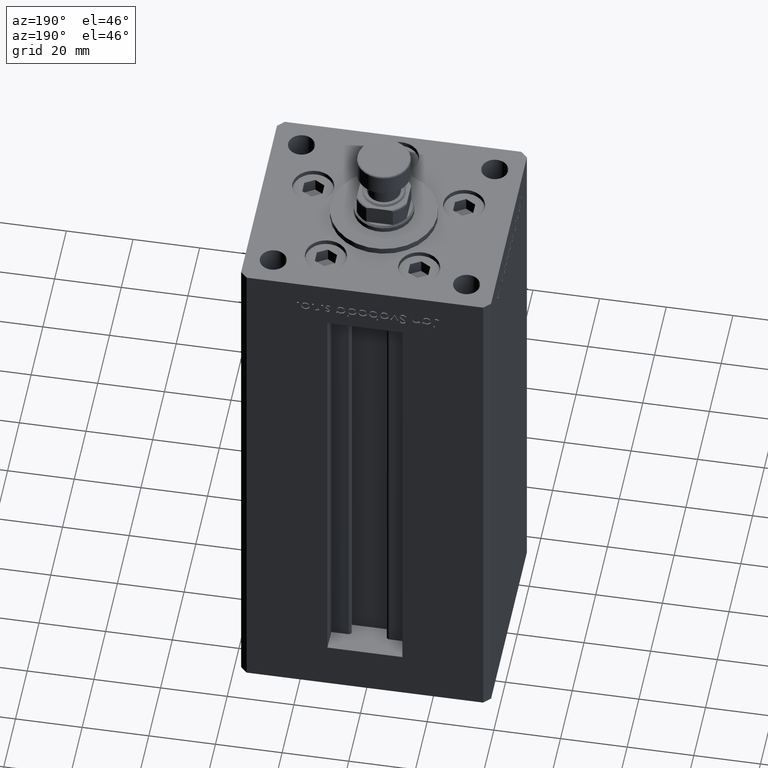
[diagram: clean part render]
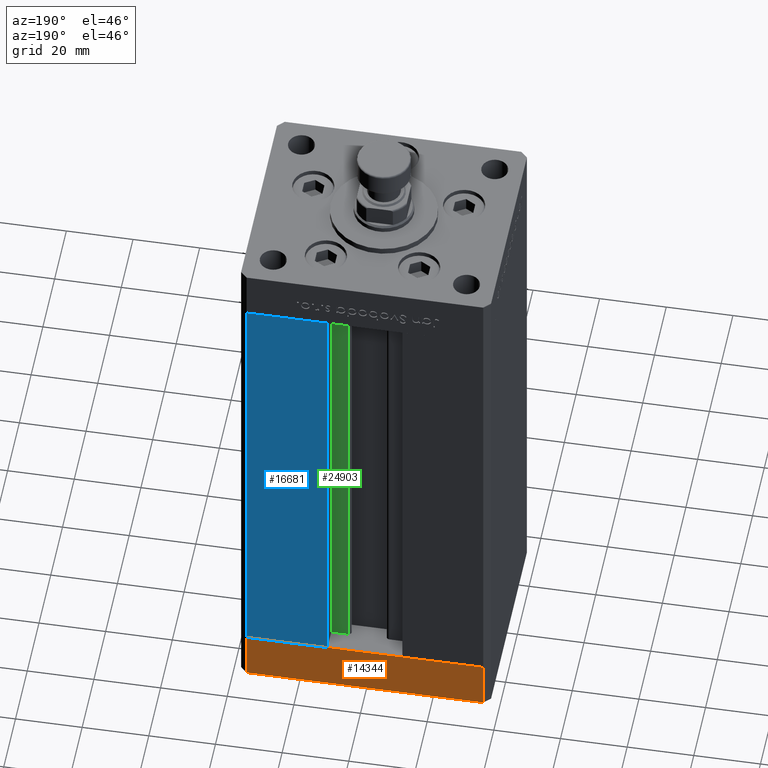
[diagram: same view with three faces highlighted in distinct colors, each labeled with its STEP entity id]
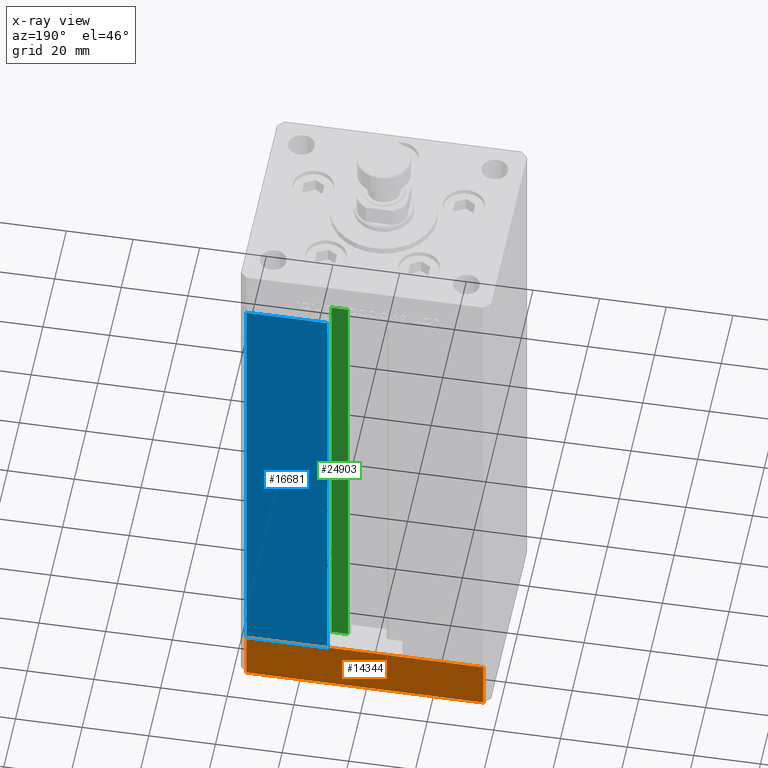
[diagram: x-ray of the same camera — body ghosted, the three highlighted faces saturated]
A machine part, auxiliary view with three faces highlighted in distinct colors.
The next image is the same camera in x-ray (body ghosted, the three faces saturated) — at least one of them is partly hidden behind the body in this view.
Their STEP definitions:

[orange] entity #14344 — the highlighted planar face has unit normal (0, 1, 0).
#2375 = PLANE ( 'NONE',  #32596 ) ;
#2636 = DIRECTION ( 'NONE',  ( -1.000000000000000000, -1.954618001100629052E-16, 0.000000000000000000 ) ) ;
#4412 = VERTEX_POINT ( 'NONE', #11538 ) ;
#4631 = CARTESIAN_POINT ( 'NONE',  ( 35.49999999999992184, 32.50000000000000711, 0.000000000000000000 ) ) ;
#5890 = LINE ( 'NONE', #29605, #21758 ) ;
#6945 = VECTOR ( 'NONE', #37063, 1000.000000000000000 ) ;
#8287 = EDGE_CURVE ( 'NONE', #45125, #28592, #13067, .T. ) ;
#10088 = DIRECTION ( 'NONE',  ( -1.954618001100629052E-16, 1.000000000000000000, 0.000000000000000000 ) ) ;
#10191 = CARTESIAN_POINT ( 'NONE',  ( 35.49999999999992184, 32.50000000000000711, -15.00000000000000000 ) ) ;
#11538 = CARTESIAN_POINT ( 'NONE',  ( -35.50000000000002842, 32.49999999999999289, 0.000000000000000000 ) ) ;
#11685 = CARTESIAN_POINT ( 'NONE',  ( 35.49999999999992184, 32.50000000000000711, -15.00000000000000000 ) ) ;
#13067 = LINE ( 'NONE', #20531, #6945 ) ;
#13871 = LINE ( 'NONE', #49617, #18341 ) ;
#14091 = CARTESIAN_POINT ( 'NONE',  ( 35.49999999999992184, 32.50000000000000711, -15.00000000000000000 ) ) ;
#14344 = ADVANCED_FACE ( 'NONE', ( #17818 ), #2375, .T. ) ;
#15640 = ORIENTED_EDGE ( 'NONE', *, *, #8287, .F. ) ;
#17818 = FACE_OUTER_BOUND ( 'NONE', #34843, .T. ) ;
#18341 = VECTOR ( 'NONE', #45615, 1000.000000000000000 ) ;
#18719 = CARTESIAN_POINT ( 'NONE',  ( -35.50000000000002842, 32.49999999999999289, -15.00000000000000000 ) ) ;
#19369 = VERTEX_POINT ( 'NONE', #18719 ) ;
#20531 = CARTESIAN_POINT ( 'NONE',  ( 35.49999999999992184, 32.50000000000000711, -15.00000000000000000 ) ) ;
#21758 = VECTOR ( 'NONE', #45883, 1000.000000000000000 ) ;
#25111 = VECTOR ( 'NONE', #26724, 1000.000000000000000 ) ;
#25341 = EDGE_CURVE ( 'NONE', #45125, #19369, #38984, .T. ) ;
#26212 = EDGE_CURVE ( 'NONE', #19369, #4412, #13871, .T. ) ;
#26724 = DIRECTION ( 'NONE',  ( -1.000000000000000000, -1.954618001100629052E-16, 0.000000000000000000 ) ) ;
#27079 = EDGE_CURVE ( 'NONE', #28592, #4412, #5890, .T. ) ;
#27231 = ORIENTED_EDGE ( 'NONE', *, *, #25341, .T. ) ;
#28592 = VERTEX_POINT ( 'NONE', #4631 ) ;
#29605 = CARTESIAN_POINT ( 'NONE',  ( 35.49999999999992184, 32.50000000000000711, 0.000000000000000000 ) ) ;
#32579 = ORIENTED_EDGE ( 'NONE', *, *, #27079, .F. ) ;
#32596 = AXIS2_PLACEMENT_3D ( 'NONE', #14091, #10088, #2636 ) ;
#32771 = ORIENTED_EDGE ( 'NONE', *, *, #26212, .T. ) ;
#34843 = EDGE_LOOP ( 'NONE', ( #32579, #15640, #27231, #32771 ) ) ;
#37063 = DIRECTION ( 'NONE',  ( 0.000000000000000000, 0.000000000000000000, 1.000000000000000000 ) ) ;
#38984 = LINE ( 'NONE', #10191, #25111 ) ;
#45125 = VERTEX_POINT ( 'NONE', #11685 ) ;
#45615 = DIRECTION ( 'NONE',  ( 0.000000000000000000, 0.000000000000000000, 1.000000000000000000 ) ) ;
#45883 = DIRECTION ( 'NONE',  ( -1.000000000000000000, -1.954618001100629052E-16, 0.000000000000000000 ) ) ;
#49617 = CARTESIAN_POINT ( 'NONE',  ( -35.50000000000002842, 32.49999999999999289, -15.00000000000000000 ) ) ;

[blue] entity #16681 — the highlighted planar face has unit normal (0, -1, 0).
#142 = LINE ( 'NONE', #40394, #925 ) ;
#197 = FACE_OUTER_BOUND ( 'NONE', #37152, .T. ) ;
#925 = VECTOR ( 'NONE', #32639, 1000.000000000000000 ) ;
#944 = VECTOR ( 'NONE', #9635, 1000.000000000000000 ) ;
#2716 = DIRECTION ( 'NONE',  ( -1.000000000000000000, 0.000000000000000000, 0.000000000000000000 ) ) ;
#5915 = VERTEX_POINT ( 'NONE', #37742 ) ;
#8851 = CARTESIAN_POINT ( 'NONE',  ( -11.25000000000000178, 32.49999999999999289, 138.0000000000000000 ) ) ;
#9635 = DIRECTION ( 'NONE',  ( 1.000000000000000000, 0.000000000000000000, 0.000000000000000000 ) ) ;
#11719 = VERTEX_POINT ( 'NONE', #13935 ) ;
#13211 = VERTEX_POINT ( 'NONE', #42536 ) ;
#13935 = CARTESIAN_POINT ( 'NONE',  ( 11.24999999999999467, 32.49999999999999289, 138.0000000000000000 ) ) ;
#16451 = CARTESIAN_POINT ( 'NONE',  ( 11.25000000000000178, 32.49999999999999289, 0.000000000000000000 ) ) ;
#16681 = ADVANCED_FACE ( 'NONE', ( #197 ), #40953, .F. ) ;
#16953 = CARTESIAN_POINT ( 'NONE',  ( -11.25000000000000178, 32.49999999999999289, 138.0000000000000000 ) ) ;
#17493 = DIRECTION ( 'NONE',  ( 0.000000000000000000, -0.000000000000000000, -1.000000000000000000 ) ) ;
#17844 = ORIENTED_EDGE ( 'NONE', *, *, #41271, .T. ) ;
#19212 = ORIENTED_EDGE ( 'NONE', *, *, #50970, .T. ) ;
#23494 = LINE ( 'NONE', #35738, #48033 ) ;
#25230 = DIRECTION ( 'NONE',  ( 0.000000000000000000, -1.000000000000000000, 0.000000000000000000 ) ) ;
#27203 = VECTOR ( 'NONE', #47309, 1000.000000000000000 ) ;
#30098 = ORIENTED_EDGE ( 'NONE', *, *, #43498, .T. ) ;
#31020 = LINE ( 'NONE', #51818, #27203 ) ;
#32639 = DIRECTION ( 'NONE',  ( -0.000000000000000000, -0.000000000000000000, 1.000000000000000000 ) ) ;
#35738 = CARTESIAN_POINT ( 'NONE',  ( -11.25000000000000178, 32.49999999999999289, 0.000000000000000000 ) ) ;
#37152 = EDGE_LOOP ( 'NONE', ( #19212, #17844, #30098, #40995 ) ) ;
#37742 = CARTESIAN_POINT ( 'NONE',  ( 35.50000000000000000, 32.49999999999999289, 0.000000000000000000 ) ) ;
#38146 = EDGE_CURVE ( 'NONE', #13211, #5915, #31020, .T. ) ;
#38153 = LINE ( 'NONE', #8851, #944 ) ;
#40394 = CARTESIAN_POINT ( 'NONE',  ( 11.25000000000000178, 32.49999999999999289, 0.000000000000000000 ) ) ;
#40953 = PLANE ( 'NONE',  #51438 ) ;
#40995 = ORIENTED_EDGE ( 'NONE', *, *, #38146, .T. ) ;
#41271 = EDGE_CURVE ( 'NONE', #50324, #11719, #142, .T. ) ;
#42536 = CARTESIAN_POINT ( 'NONE',  ( 35.50000000000000000, 32.49999999999999289, 138.0000000000000000 ) ) ;
#43498 = EDGE_CURVE ( 'NONE', #11719, #13211, #38153, .T. ) ;
#47309 = DIRECTION ( 'NONE',  ( -0.000000000000000000, -0.000000000000000000, -1.000000000000000000 ) ) ;
#48033 = VECTOR ( 'NONE', #2716, 1000.000000000000000 ) ;
#50324 = VERTEX_POINT ( 'NONE', #16451 ) ;
#50970 = EDGE_CURVE ( 'NONE', #5915, #50324, #23494, .T. ) ;
#51438 = AXIS2_PLACEMENT_3D ( 'NONE', #16953, #25230, #17493 ) ;
#51818 = CARTESIAN_POINT ( 'NONE',  ( 35.50000000000000000, 32.49999999999999289, 138.0000000000000000 ) ) ;

[green] entity #24903 — the highlighted planar face has unit normal (0, -1, 0).
#1736 = FACE_OUTER_BOUND ( 'NONE', #50842, .T. ) ;
#2596 = VERTEX_POINT ( 'NONE', #45633 ) ;
#5739 = VERTEX_POINT ( 'NONE', #13840 ) ;
#6384 = ORIENTED_EDGE ( 'NONE', *, *, #37698, .F. ) ;
#6473 = VERTEX_POINT ( 'NONE', #23224 ) ;
#9783 = VECTOR ( 'NONE', #26524, 1000.000000000000000 ) ;
#11604 = VECTOR ( 'NONE', #13417, 1000.000000000000000 ) ;
#12104 = DIRECTION ( 'NONE',  ( 1.000000000000000000, 0.000000000000000000, 0.000000000000000000 ) ) ;
#12625 = LINE ( 'NONE', #17675, #11604 ) ;
#13202 = DIRECTION ( 'NONE',  ( 0.000000000000000000, -0.000000000000000000, -1.000000000000000000 ) ) ;
#13417 = DIRECTION ( 'NONE',  ( -1.000000000000000000, 0.000000000000000000, 0.000000000000000000 ) ) ;
#13457 = DIRECTION ( 'NONE',  ( 0.000000000000000000, -1.000000000000000000, 0.000000000000000000 ) ) ;
#13840 = CARTESIAN_POINT ( 'NONE',  ( 6.183333333334001480, 25.99999999999999289, 0.000000000000000000 ) ) ;
#17675 = CARTESIAN_POINT ( 'NONE',  ( 0.000000000000000000, 25.99999999999999289, 138.0000000000000000 ) ) ;
#18603 = LINE ( 'NONE', #34860, #31466 ) ;
#20072 = EDGE_CURVE ( 'NONE', #5739, #2596, #41998, .T. ) ;
#21478 = VECTOR ( 'NONE', #12104, 1000.000000000000000 ) ;
#22251 = CARTESIAN_POINT ( 'NONE',  ( 6.183333333334001480, 25.99999999999999289, 0.000000000000000000 ) ) ;
#23224 = CARTESIAN_POINT ( 'NONE',  ( 11.25000000000000178, 25.99999999999999289, 138.0000000000000000 ) ) ;
#24903 = ADVANCED_FACE ( 'NONE', ( #1736 ), #49995, .F. ) ;
#26524 = DIRECTION ( 'NONE',  ( -0.000000000000000000, -0.000000000000000000, 1.000000000000000000 ) ) ;
#27131 = LINE ( 'NONE', #32357, #21478 ) ;
#27705 = ORIENTED_EDGE ( 'NONE', *, *, #20072, .T. ) ;
#29539 = EDGE_CURVE ( 'NONE', #6473, #2596, #12625, .T. ) ;
#31466 = VECTOR ( 'NONE', #51138, 1000.000000000000000 ) ;
#32357 = CARTESIAN_POINT ( 'NONE',  ( 6.183333333334001480, 25.99999999999999289, 0.000000000000000000 ) ) ;
#32545 = VERTEX_POINT ( 'NONE', #35170 ) ;
#33728 = CARTESIAN_POINT ( 'NONE',  ( 6.183333333334001480, 25.99999999999999289, 0.000000000000000000 ) ) ;
#34860 = CARTESIAN_POINT ( 'NONE',  ( 11.25000000000000178, 25.99999999999999289, 0.000000000000000000 ) ) ;
#35170 = CARTESIAN_POINT ( 'NONE',  ( 11.25000000000000178, 25.99999999999999289, 0.000000000000000000 ) ) ;
#37698 = EDGE_CURVE ( 'NONE', #32545, #6473, #18603, .T. ) ;
#41403 = ORIENTED_EDGE ( 'NONE', *, *, #29539, .F. ) ;
#41998 = LINE ( 'NONE', #33728, #9783 ) ;
#45633 = CARTESIAN_POINT ( 'NONE',  ( 6.183333333334001480, 25.99999999999999289, 138.0000000000000000 ) ) ;
#46642 = EDGE_CURVE ( 'NONE', #5739, #32545, #27131, .T. ) ;
#48983 = AXIS2_PLACEMENT_3D ( 'NONE', #22251, #13457, #13202 ) ;
#49995 = PLANE ( 'NONE',  #48983 ) ;
#50842 = EDGE_LOOP ( 'NONE', ( #6384, #51318, #27705, #41403 ) ) ;
#51138 = DIRECTION ( 'NONE',  ( -0.000000000000000000, -0.000000000000000000, 1.000000000000000000 ) ) ;
#51318 = ORIENTED_EDGE ( 'NONE', *, *, #46642, .F. ) ;